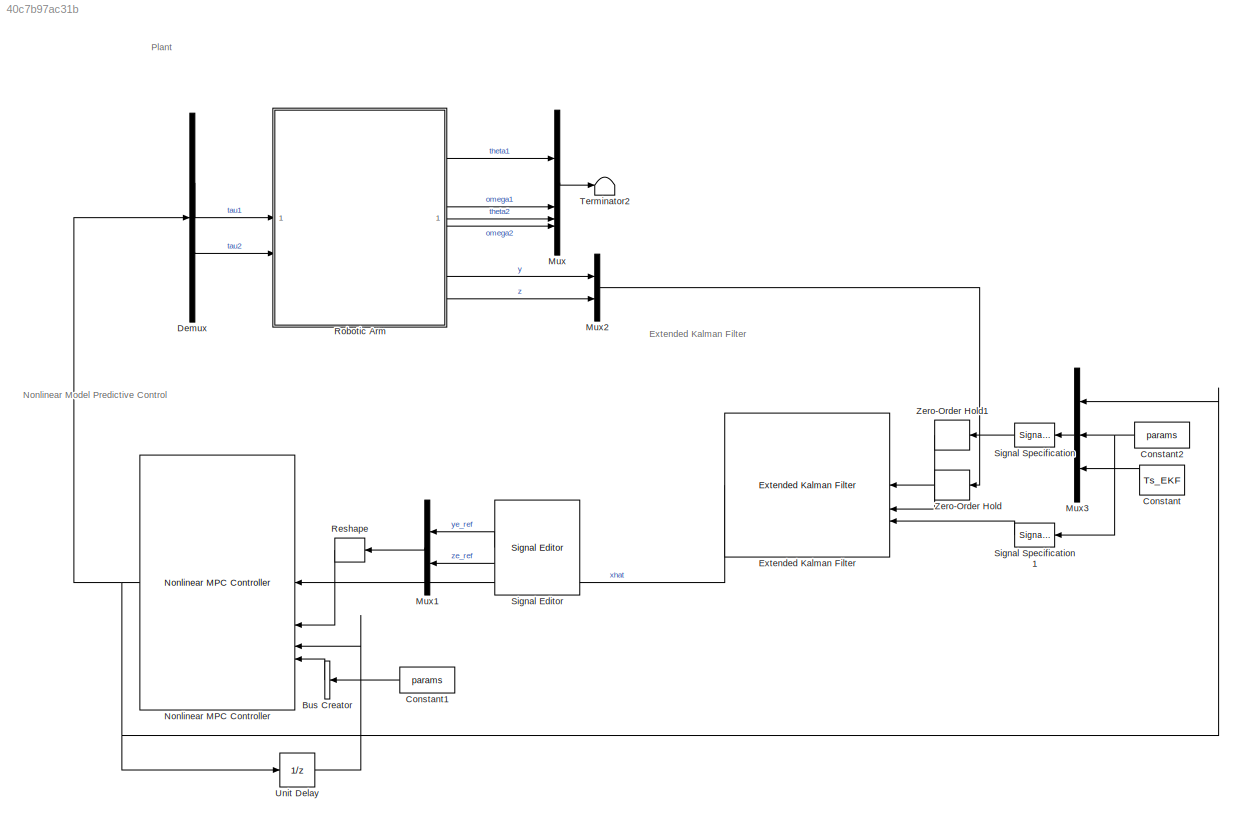
MODEL slx_40c7b97ac31b
KIND model
CONFIG AbsTol = auto
CONFIG EnableMultiTasking = off
CONFIG FixedStep = auto
CONFIG MaxStep = auto
CONFIG MinStep = auto
CONFIG RelTol = 1e-3
CONFIG SampleTimeConstraint = Unconstrained
CONFIG SolverName = VariableStepAuto
CONFIG StartTime = 0.0
CONFIG StopTime = 4.5
BLOCK [BusCreator] Bus Creator
  DisplayOption = bar
  InheritFromInputs = off
  Inputs = 1
  NonVirtualBus = on
  OutDataTypeStr = Bus: paramsBusObject
BLOCK [Constant] Constant
  Value = Ts_EKF
BLOCK [Constant] Constant1
  Value = params
BLOCK [Constant] Constant2
  Value = params
BLOCK [Demux] Demux
  Outputs = 2
BLOCK [Reference] Extended Kalman Filter  REF=sharedTrackingLibrary/Extended Kalman Filter
  LibrarySourceBlock = cstblocks/State Estimation/Extended Kalman Filter
  SourceBlock = sharedTrackingLibrary/Extended Kalman Filter
  SourceType = Extended Kalman Filter
BLOCK [Mux] Mux
  DisplayOption = bar
BLOCK [Mux] Mux1
  DisplayOption = bar
  Inputs = 2
BLOCK [Mux] Mux2
  DisplayOption = bar
  Inputs = 2
BLOCK [Mux] Mux3
  DisplayOption = bar
  Inputs = 3
BLOCK [Reference] Nonlinear MPC Controller  REF=mpclib/Nonlinear MPC Controller  (lib defined in mdl_ae329e0e0455)
  SourceBlock = mpclib/Nonlinear MPC Controller
  SourceType = NonlinearMPC
BLOCK [Reshape] Reshape
  OutputDimensionality = Row vector (2-D)
BLOCK [SubSystem] Robotic Arm
  ReferencedSubsystem = arm
BLOCK [Reference] Signal Editor  REF=SignalEditorBlockLib/Signal Editor
  LibrarySourceBlock = simulink/Sources/Signal Editor
  SourceBlock = SignalEditorBlockLib/Signal Editor
  SourceType = SignalEditor
  UserDataPersistent = on
BLOCK [SignalSpecification] Signal Specification
  Dimensions = 12
BLOCK [SignalSpecification] Signal Specification1
  Dimensions = 9
BLOCK [Terminator] Terminator2
BLOCK [UnitDelay] Unit Delay
  HasFrameUpgradeWarning = on
  SampleTime = nlobj.Ts
BLOCK [ZeroOrderHold] Zero-Order Hold
  SampleTime = Ts_EKF
BLOCK [ZeroOrderHold] Zero-Order Hold1
  SampleTime = Ts_EKF
ANNOTATION (root): Extended Kalman Filter
ANNOTATION (root): Nonlinear Model Predictive Control
ANNOTATION (root): Plant
LINE Bus Creator:1 -> Nonlinear MPC Controller:4
LINE Constant1:1 -> Bus Creator:1
NET Constant2:1 -> Mux3:2, Signal Specification1:1
LINE Constant:1 -> Mux3:3
LINE Demux:1 -> Robotic Arm:1
LINE Demux:2 -> Robotic Arm:2
LINE Extended Kalman Filter:1 -> Nonlinear MPC Controller:1
LINE Mux1:1 -> Reshape:1
LINE Mux2:1 -> Zero-Order Hold:1
LINE Mux3:1 -> Signal Specification:1
LINE Mux:1 -> Terminator2:1
NET Nonlinear MPC Controller:1 -> Demux:1, Mux3:1, Unit Delay:1
LINE Reshape:1 -> Nonlinear MPC Controller:2
LINE Robotic Arm:1 -> Mux:1
LINE Robotic Arm:2 -> Mux:2
LINE Robotic Arm:3 -> Mux:3
LINE Robotic Arm:4 -> Mux:4
LINE Robotic Arm:5 -> Mux2:1
LINE Robotic Arm:6 -> Mux2:2
LINE Signal Editor:1 -> Mux1:1
LINE Signal Editor:2 -> Mux1:2
LINE Signal Specification1:1 -> Extended Kalman Filter:3
LINE Signal Specification:1 -> Zero-Order Hold1:1
LINE Unit Delay:1 -> Nonlinear MPC Controller:3
LINE Zero-Order Hold1:1 -> Extended Kalman Filter:1
LINE Zero-Order Hold:1 -> Extended Kalman Filter:2
note: NET lines group one-source signal fan-out (src -> all destinations, sorted); 1:1 wires keep LINE
